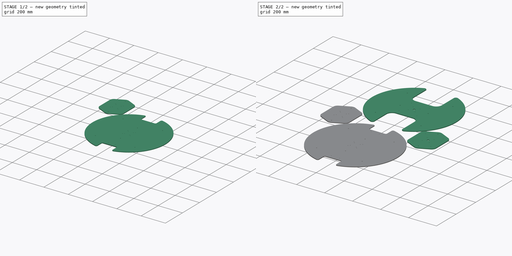
[diagram: build sequence overview — one tinted view per stage of 2, left to right]
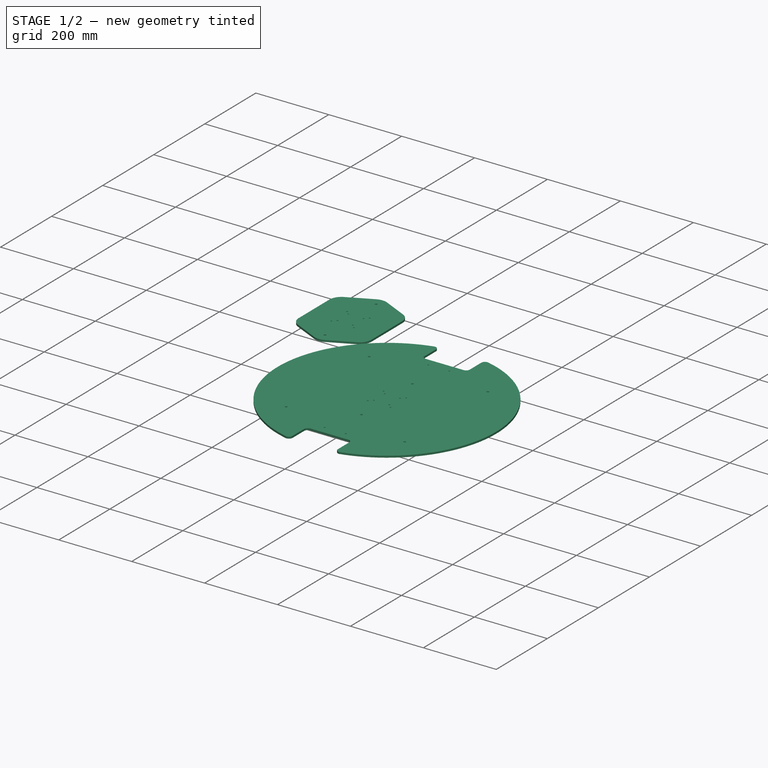
[diagram: stage 1 of 2 — iso view after this stage's code; geometry added in this stage tinted green]
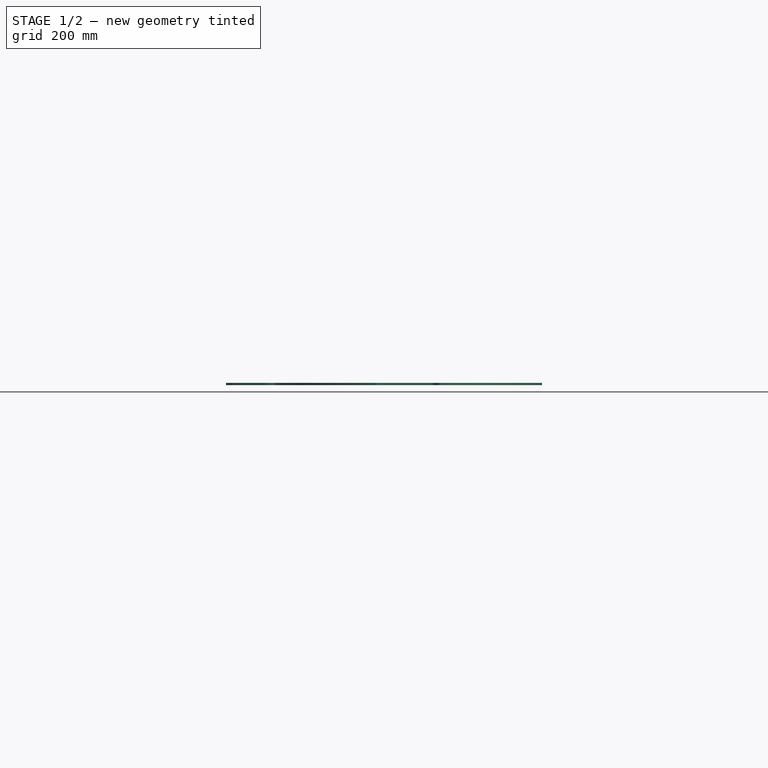
[diagram: stage 1 of 2 — front view after this stage's code; geometry added in this stage tinted green]
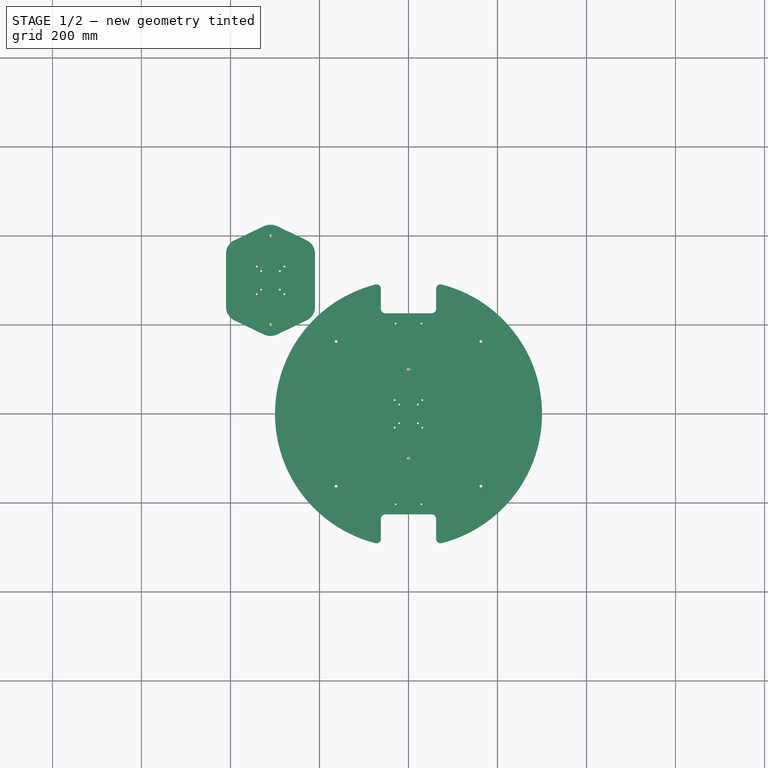
[diagram: stage 1 of 2 — top view after this stage's code; geometry added in this stage tinted green]
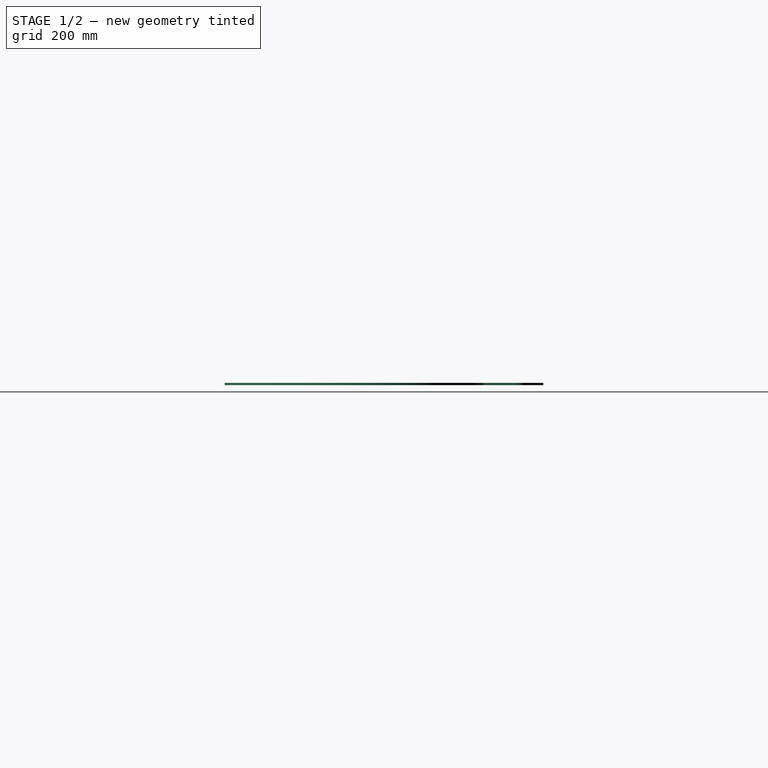
[diagram: stage 1 of 2 — right view after this stage's code; geometry added in this stage tinted green]
FCSTD DOCUMENT  (FreeCAD 0.15R4671 (Git))
Label: plaques
License: All rights reserved
LicenseURL: http://fr.wikipedia.org/wiki/<copyright redacted>
objects: Sketcher::SketchObject×4, PartDesign::Pad×4
note: 12 computed .brp shape members not serialized (recipe doc carries the construction recipe); baked Part::Feature solids carry a one-line shape summary decoded from their .brp

FEATURE [Sketcher::SketchObject] Sketch002  label="socle_bottom_sketch"
  Placement = pos=(-310,300,0) rot=(0,0,1;1.5708rad)
  sketch-geometry (24):
    g0: LineSegment StartX=-60 StartY=-100 StartZ=0 EndX=60 EndY=-100 EndZ=0
    g1: LineSegment StartX=90 StartY=-81.0908 StartZ=0 EndX=121.599 EndY=-15 EndZ=0
    g2: LineSegment StartX=121.599 StartY=15 StartZ=0 EndX=90 EndY=81.0908 EndZ=0
    g3: LineSegment StartX=60 StartY=100 StartZ=0 EndX=-60 EndY=100 EndZ=0
    g4: LineSegment StartX=-90 StartY=81.0908 StartZ=0 EndX=-121.599 EndY=15 EndZ=0
    g5: LineSegment StartX=-121.599 StartY=-15 StartZ=0 EndX=-90 EndY=-81.0908 EndZ=0
    g6: ArcOfCircle CenterX=-60 CenterY=66.7475 CenterZ=0 NormalX=0 NormalY=0 NormalZ=1 Radius=33.2525 StartAngle=1.5708 EndAngle=2.69561
    g7: ArcOfCircle CenterX=60 CenterY=66.7475 CenterZ=0 NormalX=0 NormalY=0 NormalZ=1 Radius=33.2525 StartAngle=0.445982 EndAngle=1.5708
    g8: ArcOfCircle CenterX=60 CenterY=-66.7475 CenterZ=0 NormalX=0 NormalY=0 NormalZ=1 Radius=33.2525 StartAngle=4.71239 EndAngle=5.8372
    g9: ArcOfCircle CenterX=-60 CenterY=-66.7475 CenterZ=0 NormalX=0 NormalY=0 NormalZ=1 Radius=33.2525 StartAngle=3.58757 EndAngle=4.71239
    g10: ArcOfCircle CenterX=-90.225 CenterY=0 CenterZ=0 NormalX=0 NormalY=0 NormalZ=1 Radius=34.775 StartAngle=2.69561 EndAngle=3.58757
    g11: ArcOfCircle CenterX=90.225 CenterY=0 CenterZ=0 NormalX=0 NormalY=0 NormalZ=1 Radius=34.775 StartAngle=5.8372 EndAngle=6.72917
    g12: GeomPoint [constr] X=-125 Y=0 Z=0
    g13: GeomPoint [constr] X=125 Y=0 Z=0
    g14: Circle CenterX=-100 CenterY=0 CenterZ=0 NormalX=0 NormalY=0 NormalZ=1 Radius=3
    g15: Circle CenterX=100 CenterY=0 CenterZ=0 NormalX=0 NormalY=0 NormalZ=1 Radius=3
    g16: Circle CenterX=-21 CenterY=21 CenterZ=0 NormalX=0 NormalY=0 NormalZ=1 Radius=2
    g17: Circle CenterX=21 CenterY=21 CenterZ=0 NormalX=0 NormalY=0 NormalZ=1 Radius=2
    g18: Circle CenterX=-31 CenterY=31 CenterZ=0 NormalX=0 NormalY=0 NormalZ=1 Radius=2
    g19: Circle CenterX=31 CenterY=31 CenterZ=0 NormalX=0 NormalY=0 NormalZ=1 Radius=2
    g20: Circle CenterX=-31 CenterY=-31 CenterZ=0 NormalX=0 NormalY=0 NormalZ=1 Radius=2
    g21: Circle CenterX=31 CenterY=-31 CenterZ=0 NormalX=0 NormalY=0 NormalZ=1 Radius=2
    g22: Circle CenterX=-21 CenterY=-21 CenterZ=0 NormalX=0 NormalY=0 NormalZ=1 Radius=2
    g23: Circle CenterX=21 CenterY=-21 CenterZ=0 NormalX=0 NormalY=0 NormalZ=1 Radius=2
  constraints (54):
    c: Tangent(g3,g6) = -1.5708
    c: Tangent(g4,g6) = -1.5708
    c: Tangent(g3,g7) = -1.5708
    c: Tangent(g2,g7) = -1.5708
    c: Tangent(g1,g8) = -1.5708
    c: Tangent(g0,g8) = -1.5708
    c: Tangent(g5,g9) = -1.5708
    c: Tangent(g0,g9) = -1.5708
    c: Tangent(g4,g10) = -1.5708
    c: Tangent(g5,g10) = -1.5708
    c: Tangent(g2,g11) = -1.5708
    c: Tangent(g1,g11) = -1.5708
    c: PointOnObject(g12,g10)
    c: PointOnObject(g13,g11)
    c: DistanceX(g13,g12) = -250
    c: Symmetric(g5,g4,g-1)
    c: Symmetric(g2,g1,g-1)
    c: Symmetric(g3,g0,g-1)
    c: Symmetric(g3,g0,g-1)
    c: DistanceY(g3,g0) = -200
    c: Horizontal(g3)
    c: Symmetric(g12,g13,g-2)
    c: PointOnObject(g13,g-1)
    c: DistanceX(g3) = -120
    c: Symmetric(g3,g3,g-2)
    c: DistanceY(g4,g5) = -30
    c: DistanceX(g2,g3) = -30
    c: Symmetric(g4,g2,g-2)
    c: PointOnObject(g14,g-1)
    c: PointOnObject(g15,g-1)
    c: Radius(g14) = 3
    c: Equal(g14,g15)
    c: Symmetric(g14,g15,g-2)
    c: DistanceX(g15,g14) = -200
    c: Symmetric(g16,g17,g-2)
    c: Symmetric(g16,g23,g-1)
    c: Symmetric(g18,g21,g-1)
    c: Symmetric(g17,g22,g-1)
    c: Symmetric(g19,g20,g-1)
    c: Symmetric(g18,g20,g-1)
    c: Symmetric(g16,g22,g-1)
    c: Symmetric(g18,g19,g-2)
    c: DistanceX(g16,g17) = 42
    c: Radius(g16) = 2
    c: Equal(g17,g16)
    c: Equal(g16,g23)
    c: Equal(g23,g22)
    c: Equal(g22,g18)
    c: Equal(g18,g19)
    c: Equal(g19,g21)
    c: Equal(g21,g20)
    c: DistanceY(g16,g22) = -42
    c: DistanceX(g19,g18) = -62
    c: DistanceY(g18,g20) = -62
FEATURE [PartDesign::Pad] Pad002  label="socle_bottom"
  Length = 5
  Length2 = 100
  Placement = pos=(-310,300,0) rot=(0,0,1;1.5708rad)
  Sketch = -> Sketch002
  Type = 0
FEATURE [Sketcher::SketchObject] Sketch004  label="bottom_sketch"
  sketch-geometry (36):
    g0: LineSegment StartX=-62 StartY=280.92 StartZ=0 EndX=-62 EndY=235.92 EndZ=0
    g1: LineSegment StartX=-52 StartY=225.92 StartZ=0 EndX=52 EndY=225.92 EndZ=0
    g2: LineSegment StartX=62 StartY=235.92 StartZ=0 EndX=62 EndY=280.92 EndZ=0
    g3: LineSegment StartX=-62 StartY=-280.92 StartZ=0 EndX=-62 EndY=-235.92 EndZ=0
    g4: LineSegment StartX=-52 StartY=-225.92 StartZ=0 EndX=52 EndY=-225.92 EndZ=0
    g5: LineSegment StartX=62 StartY=-235.92 StartZ=0 EndX=62 EndY=-280.92 EndZ=0
    g6: ArcOfCircle CenterX=-52 CenterY=-235.92 CenterZ=0 NormalX=0 NormalY=0 NormalZ=1 Radius=10 StartAngle=1.5708 EndAngle=3.14159
    g7: ArcOfCircle CenterX=52 CenterY=-235.92 CenterZ=0 NormalX=0 NormalY=0 NormalZ=1 Radius=10 StartAngle=0 EndAngle=1.5708
    g8: ArcOfCircle CenterX=52 CenterY=235.92 CenterZ=0 NormalX=0 NormalY=0 NormalZ=1 Radius=10 StartAngle=4.71239 EndAngle=6.28319
    g9: ArcOfCircle CenterX=-52 CenterY=235.92 CenterZ=0 NormalX=0 NormalY=0 NormalZ=1 Radius=10 StartAngle=3.14159 EndAngle=4.71239
    g10: ArcOfCircle CenterX=0 CenterY=0 CenterZ=0 NormalX=0 NormalY=0 NormalZ=1 Radius=300 StartAngle=1.82176 EndAngle=4.46143
    g11: ArcOfCircle CenterX=0 CenterY=0 CenterZ=0 NormalX=0 NormalY=0 NormalZ=1 Radius=300 StartAngle=4.96335 EndAngle=7.60302
    g12: GeomPoint [constr] X=-300 Y=0 Z=0
    g13: GeomPoint [constr] X=300 Y=0 Z=0
    g14: ArcOfCircle CenterX=72 CenterY=280.92 CenterZ=0 NormalX=0 NormalY=0 NormalZ=1 Radius=10 StartAngle=1.31812 EndAngle=3.14159
    g15: ArcOfCircle CenterX=-72 CenterY=280.92 CenterZ=0 NormalX=0 NormalY=0 NormalZ=1 Radius=10 StartAngle=4.74205e-07 EndAngle=1.82348
    g16: ArcOfCircle CenterX=-72 CenterY=-280.92 CenterZ=0 NormalX=0 NormalY=0 NormalZ=1 Radius=10 StartAngle=4.45971 EndAngle=6.28318
    g17: ArcOfCircle CenterX=72 CenterY=-280.92 CenterZ=0 NormalX=0 NormalY=0 NormalZ=1 Radius=10 StartAngle=3.14159 EndAngle=4.96507
    g18: Circle CenterX=-21 CenterY=21 CenterZ=0 NormalX=0 NormalY=0 NormalZ=1 Radius=2
    g19: Circle CenterX=-31 CenterY=31 CenterZ=0 NormalX=0 NormalY=0 NormalZ=1 Radius=2
    g20: Circle CenterX=21 CenterY=21 CenterZ=0 NormalX=0 NormalY=0 NormalZ=1 Radius=2
    g21: Circle CenterX=31 CenterY=31 CenterZ=0 NormalX=0 NormalY=0 NormalZ=1 Radius=2
    g22: Circle CenterX=-21 CenterY=-21 CenterZ=0 NormalX=0 NormalY=0 NormalZ=1 Radius=2
    g23: Circle CenterX=-31 CenterY=-31 CenterZ=0 NormalX=0 NormalY=0 NormalZ=1 Radius=2
    g24: Circle CenterX=21 CenterY=-21 CenterZ=0 NormalX=0 NormalY=0 NormalZ=1 Radius=2
    g25: Circle CenterX=31 CenterY=-31 CenterZ=0 NormalX=0 NormalY=0 NormalZ=1 Radius=2
    g26: Circle CenterX=0 CenterY=100 CenterZ=0 NormalX=0 NormalY=0 NormalZ=1 Radius=3
    g27: Circle CenterX=0 CenterY=-100 CenterZ=0 NormalX=0 NormalY=0 NormalZ=1 Radius=3
    g28: Circle CenterX=-162.635 CenterY=162.635 CenterZ=0 NormalX=0 NormalY=0 NormalZ=1 Radius=3
    g29: Circle CenterX=162.635 CenterY=162.635 CenterZ=0 NormalX=0 NormalY=0 NormalZ=1 Radius=3
    g30: Circle CenterX=-162.635 CenterY=-162.635 CenterZ=0 NormalX=0 NormalY=0 NormalZ=1 Radius=3
    g31: Circle CenterX=162.635 CenterY=-162.635 CenterZ=0 NormalX=0 NormalY=0 NormalZ=1 Radius=3
    g32: Circle CenterX=-29 CenterY=202.92 CenterZ=0 NormalX=0 NormalY=0 NormalZ=1 Radius=2
    g33: Circle CenterX=29 CenterY=202.92 CenterZ=0 NormalX=0 NormalY=0 NormalZ=1 Radius=2
    g34: Circle CenterX=-29 CenterY=-202.92 CenterZ=0 NormalX=0 NormalY=0 NormalZ=1 Radius=2
    g35: Circle CenterX=29 CenterY=-202.92 CenterZ=0 NormalX=0 NormalY=0 NormalZ=1 Radius=2
  constraints (92):
    c: Vertical(g0)
    c: Horizontal(g1)
    c: Vertical(g2)
    c: Vertical(g3)
    c: Horizontal(g4)
    c: Vertical(g5)
    c: Tangent(g3,g6) = 1.5708
    c: Tangent(g4,g6) = 1.5708
    c: Tangent(g5,g7) = 1.5708
    c: Tangent(g4,g7) = 1.5708
    c: Tangent(g1,g8) = -1.5708
    c: Tangent(g2,g8) = -1.5708
    c: Tangent(g1,g9) = -1.5708
    c: Tangent(g0,g9) = -1.5708
    c: DistanceX(g2,g1) = -10
    c: DistanceX(g1,g0) = -10
    c: DistanceX(g4,g3) = -10
    c: DistanceX(g4,g5) = 10
    c: DistanceX(g3,g5) = 124
    c: Symmetric(g2,g0,g-2)
    c: DistanceX(g2,g0) = -124
    c: Symmetric(g5,g3,g-2)
    c: DistanceY(g4,g5) = -55
    c: DistanceY(g2,g1) = -55
    c: Symmetric(g4,g1,g-1)
    c: Coincident(g10,g-1)
    c: Coincident(g11,g-1)
    c: PointOnObject(g12,g10)
    c: PointOnObject(g13,g11)
    c: PointOnObject(g13,g-1)
    c: PointOnObject(g12,g-1)
    c: Symmetric(g12,g13,g-2)
    c: DistanceX(g13,g12) = -600
    c: Coincident(g14,g11)
    c: Coincident(g14,g2)
    c: Coincident(g15,g10)
    c: Coincident(g15,g0)
    c: Coincident(g16,g3)
    c: Coincident(g16,g10)
    c: Coincident(g17,g5)
    c: Coincident(g17,g11)
    c: Distance(g17,g11) = 10
    c: Distance(g16,g3) = 10
    c: Distance(g14,g11) = 10
    c: Symmetric(g14,g15,g-2)
    c: Symmetric(g17,g16,g-2)
    c: DistanceX(g10,g11) = 149
    c: DistanceX(g10,g11) = 149
    c: DistanceX(g15,g14) = 144
    c: Radius(g18) = 2
    c: Equal(g18,g19)
    c: Equal(g19,g20)
    c: Equal(g20,g21)
    c: Equal(g21,g22)
    c: Equal(g22,g23)
    c: Equal(g23,g24)
    c: Equal(g24,g25)
    c: Symmetric(g18,g24,g-1)
    c: Symmetric(g22,g20,g-1)
    c: Symmetric(g18,g22,g-1)
    c: DistanceX(g18,g20) = 42
    c: DistanceY(g18,g22) = -42
    c: DistanceX(g19,g21) = 62
    c: DistanceY(g19,g23) = -62
    c: Symmetric(g19,g25,g-1)
    c: Symmetric(g19,g23,g-1)
    c: Symmetric(g19,g21,g-2)
    c: PointOnObject(g26,g-2)
    c: PointOnObject(g27,g-2)
    c: Symmetric(g27,g26,g-1)
    c: DistanceY(g26,g27) = -200
    c: Radius(g26) = 3
    c: Equal(g26,g27)
    c: Radius(g28) = 3
    c: Equal(g29,g28)
    c: Equal(g28,g30)
    c: Equal(g30,g31)
    c: Symmetric(g28,g30,g-1)
    c: Symmetric(g28,g29,g-2)
    c: Symmetric(g31,g28,g-1)
    c: Distance(g-1,g29) = 230
    c: DistanceX(g29,g28) = -325.269
    c: Radius(g35) = 2
    c: Equal(g35,g34)
    c: Equal(g34,g32)
    c: Equal(g32,g33)
    c: Symmetric(g32,g33,g-2)
    c: Symmetric(g35,g34,g-2)
    c: DistanceY(g34,g4) = -23
    c: DistanceY(g32,g1) = 23
    c: DistanceX(g32,g33) = 58
    c: DistanceX(g35,g34) = -58
FEATURE [PartDesign::Pad] Pad004  label="bottom"
  Length = 5
  Length2 = 100
  Sketch = -> Sketch004
  Type = 0
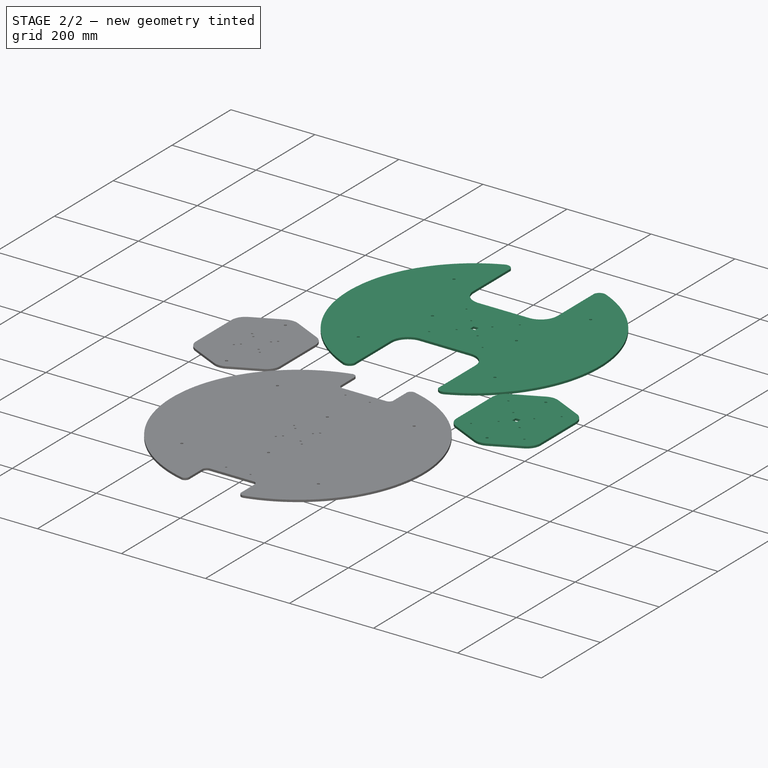
[diagram: stage 2 of 2 — iso view after this stage's code; geometry added in this stage tinted green]
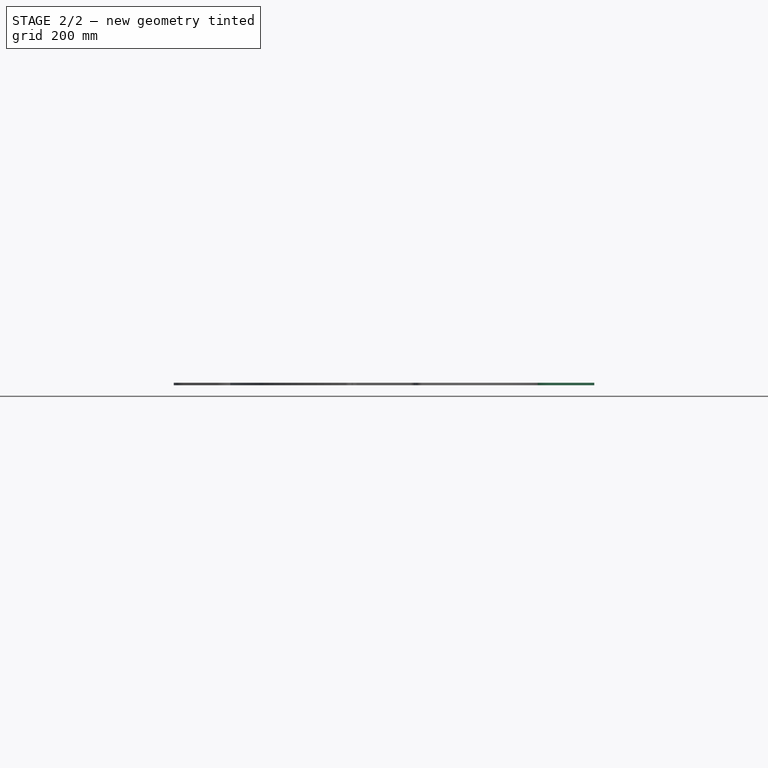
[diagram: stage 2 of 2 — front view after this stage's code; geometry added in this stage tinted green]
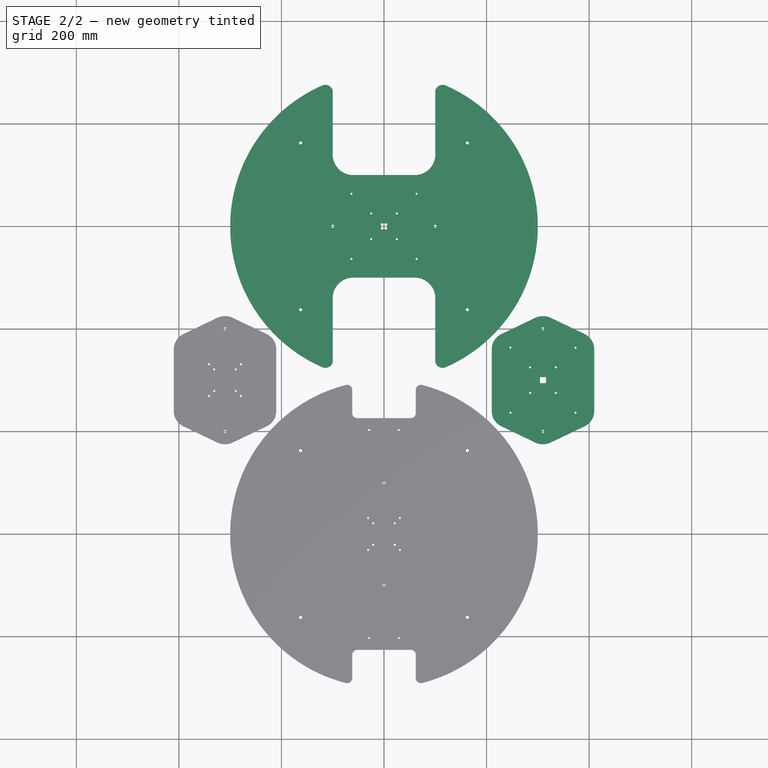
[diagram: stage 2 of 2 — top view after this stage's code; geometry added in this stage tinted green]
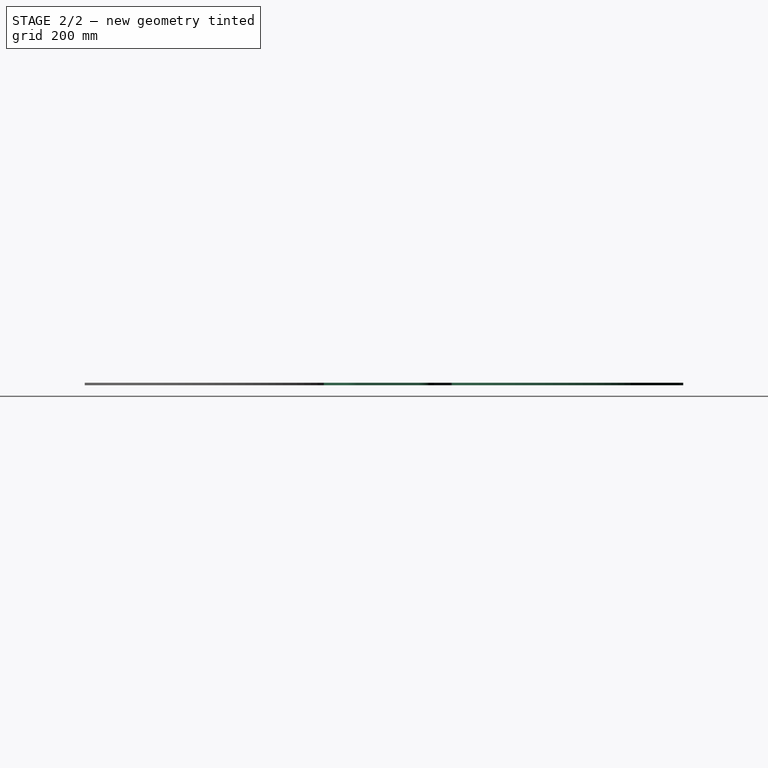
[diagram: stage 2 of 2 — right view after this stage's code; geometry added in this stage tinted green]
FEATURE [Sketcher::SketchObject] Sketch001  label="top_sketch"
  Placement = pos=(0,600,0) rot=(0,0,1;0rad)
  sketch-geometry (34):
    g0: LineSegment StartX=100 StartY=265 StartZ=0 EndX=100 EndY=140 EndZ=0
    g1: LineSegment StartX=60 StartY=100 StartZ=0 EndX=-60 EndY=100 EndZ=0
    g2: LineSegment StartX=-100 StartY=140 StartZ=0 EndX=-100 EndY=265 EndZ=0
    g3: LineSegment StartX=-60 StartY=-100 StartZ=0 EndX=60 EndY=-100 EndZ=0
    g4: LineSegment StartX=100 StartY=-140 StartZ=0 EndX=100 EndY=-265 EndZ=0
    g5: LineSegment StartX=-100 StartY=-265 StartZ=0 EndX=-100 EndY=-140 EndZ=0
    g6: ArcOfCircle CenterX=-60 CenterY=140 CenterZ=0 NormalX=0 NormalY=0 NormalZ=1 Radius=40 StartAngle=3.14159 EndAngle=4.71239
    g7: ArcOfCircle CenterX=-60 CenterY=-140 CenterZ=0 NormalX=0 NormalY=0 NormalZ=1 Radius=40 StartAngle=1.5708 EndAngle=3.14159
    g8: ArcOfCircle CenterX=60 CenterY=-140 CenterZ=0 NormalX=0 NormalY=0 NormalZ=1 Radius=40 StartAngle=0 EndAngle=1.5708
    g9: ArcOfCircle CenterX=60 CenterY=140 CenterZ=0 NormalX=0 NormalY=0 NormalZ=1 Radius=40 StartAngle=4.71239 EndAngle=6.28319
    g10: ArcOfCircle CenterX=0 CenterY=0 CenterZ=0 NormalX=0 NormalY=0 NormalZ=1 Radius=300 StartAngle=1.98413 EndAngle=4.29905
    g11: ArcOfCircle CenterX=0 CenterY=0 CenterZ=0 NormalX=0 NormalY=0 NormalZ=1 Radius=300 StartAngle=5.12573 EndAngle=7.44065
    g12: ArcOfCircle CenterX=-114.459 CenterY=261.006 CenterZ=0 NormalX=0 NormalY=0 NormalZ=1 Radius=15 StartAngle=0.269503 EndAngle=1.98533
    g13: ArcOfCircle CenterX=-114.459 CenterY=-261.006 CenterZ=0 NormalX=0 NormalY=0 NormalZ=1 Radius=15 StartAngle=4.29786 EndAngle=6.01368
    g14: ArcOfCircle CenterX=114.459 CenterY=-261.006 CenterZ=0 NormalX=0 NormalY=0 NormalZ=1 Radius=15 StartAngle=3.4111 EndAngle=5.12692
    g15: ArcOfCircle CenterX=114.459 CenterY=261.006 CenterZ=0 NormalX=0 NormalY=0 NormalZ=1 Radius=15 StartAngle=1.15626 EndAngle=2.87209
    g16: Circle CenterX=100 CenterY=0 CenterZ=0 NormalX=0 NormalY=0 NormalZ=1 Radius=3
    g17: Circle CenterX=-100 CenterY=0 CenterZ=0 NormalX=0 NormalY=0 NormalZ=1 Radius=3
    g18: Circle CenterX=-162.635 CenterY=162.635 CenterZ=0 NormalX=0 NormalY=0 NormalZ=1 Radius=3
    g19: Circle CenterX=162.635 CenterY=162.635 CenterZ=0 NormalX=0 NormalY=0 NormalZ=1 Radius=3
    g20: Circle CenterX=-162.635 CenterY=-162.635 CenterZ=0 NormalX=0 NormalY=0 NormalZ=1 Radius=3
    g21: Circle CenterX=162.635 CenterY=-162.635 CenterZ=0 NormalX=0 NormalY=0 NormalZ=1 Radius=3
    g22: LineSegment StartX=-5.9 StartY=5.9 StartZ=0 EndX=5.9 EndY=5.9 EndZ=0
    g23: LineSegment StartX=5.9 StartY=5.9 StartZ=0 EndX=5.9 EndY=-5.9 EndZ=0
    g24: LineSegment StartX=5.9 StartY=-5.9 StartZ=0 EndX=-5.9 EndY=-5.9 EndZ=0
    g25: LineSegment StartX=-5.9 StartY=-5.9 StartZ=0 EndX=-5.9 EndY=5.9 EndZ=0
    g26: Circle CenterX=-25 CenterY=25 CenterZ=0 NormalX=0 NormalY=0 NormalZ=1 Radius=2
    g27: Circle CenterX=25 CenterY=-25 CenterZ=0 NormalX=0 NormalY=0 NormalZ=1 Radius=2
    g28: Circle CenterX=-63.5 CenterY=63.5 CenterZ=0 NormalX=0 NormalY=0 NormalZ=1 Radius=2
    g29: Circle CenterX=25 CenterY=25 CenterZ=0 NormalX=0 NormalY=0 NormalZ=1 Radius=2
    g30: Circle CenterX=63.5 CenterY=63.5 CenterZ=0 NormalX=0 NormalY=0 NormalZ=1 Radius=2
    g31: Circle CenterX=63.5 CenterY=-63.5 CenterZ=0 NormalX=0 NormalY=0 NormalZ=1 Radius=2
    g32: Circle CenterX=-25 CenterY=-25 CenterZ=0 NormalX=0 NormalY=0 NormalZ=1 Radius=2
    g33: Circle CenterX=-63.5 CenterY=-63.5 CenterZ=0 NormalX=0 NormalY=0 NormalZ=1 Radius=2
  constraints (87):
    c: Horizontal(g1)
    c: Vertical(g2)
    c: Horizontal(g3)
    c: Vertical(g4)
    c: Vertical(g5)
    c: Tangent(g2,g6) = 1.5708
    c: Tangent(g1,g6) = 1.5708
    c: Tangent(g3,g7) = 1.5708
    c: Tangent(g5,g7) = 1.5708
    c: Tangent(g3,g8) = 1.5708
    c: Tangent(g4,g8) = 1.5708
    c: Tangent(g1,g9) = 1.5708
    c: Tangent(g0,g9) = 1.5708
    c: DistanceY(g2,g1) = -165
    c: Symmetric(g2,g0,g-2)
    c: Symmetric(g4,g5,g-2)
    c: DistanceY(g3,g5) = -165
    c: DistanceY(g3,g5) = -40
    c: DistanceY(g2,g1) = -40
    c: Symmetric(g1,g3,g-1)
    c: Symmetric(g2,g0,g-2)
    c: Symmetric(g4,g5,g-2)
    c: DistanceX(g4,g5) = -200
    c: DistanceY(g1,g3) = -200
    c: Coincident(g10,g-1)
    c: Coincident(g11,g-1)
    c: Symmetric(g11,g10,g-2)
    c: Symmetric(g11,g10,g-2)
    c: Distance(g-1,g10) = 300
    c: DistanceX(g11,g10) = -241
    c: DistanceX(g11,g10) = -241
    c: Coincident(g12,g2)
    c: Coincident(g12,g10)
    c: Distance(g2,g12) = 15
    c: Coincident(g13,g5)
    c: Coincident(g13,g10)
    c: Coincident(g14,g4)
    c: Coincident(g14,g11)
    c: Coincident(g15,g11)
    c: Coincident(g15,g0)
    c: Symmetric(g12,g15,g-2)
    c: Symmetric(g12,g13,g-1)
    c: Symmetric(g15,g14,g-1)
    c: PointOnObject(g16,g-1)
    c: PointOnObject(g17,g-1)
    c: Equal(g17,g16)
    c: Radius(g17) = 3
    c: Symmetric(g16,g17,g-2)
    c: DistanceX(g-1,g17) = -100
    c: Equal(g19,g18)
    c: Equal(g18,g20)
    c: Equal(g20,g21)
    c: Equal(g21,g17)
    c: Symmetric(g18,g20,g-1)
    c: Symmetric(g21,g20,g-2)
    c: Symmetric(g21,g19,g-1)
    c: Distance(g-1,g19) = 230
    c: DistanceX(g19,g18) = -325.269
    c: Coincident(g22,g23)
    c: Coincident(g23,g24)
    c: Coincident(g24,g25)
    c: Coincident(g25,g22)
    c: Horizontal(g22)
    c: Horizontal(g24)
    c: Vertical(g23)
    c: Vertical(g25)
    c: DistanceX(g22) = 11.8
    c: Equal(g22,g23)
    c: Symmetric(g22,g24,g-1)
    c: Radius(g26) = 2
    c: Equal(g26,g28)
    c: Equal(g28,g30)
    c: Equal(g30,g29)
    c: Equal(g29,g31)
    c: Equal(g31,g27)
    c: Equal(g27,g32)
    c: Equal(g32,g33)
    c: Symmetric(g26,g29,g-2)
    c: Symmetric(g28,g30,g-2)
    c: Symmetric(g28,g33,g-1)
    c: Symmetric(g32,g26,g-1)
    c: Symmetric(g26,g27,g-1)
    c: Symmetric(g28,g31,g-1)
    c: DistanceY(g26,g32) = -50
    c: DistanceX(g26,g29) = 50
    c: DistanceX(g28,g30) = 127
    c: DistanceY(g28,g33) = -127
FEATURE [PartDesign::Pad] Pad  label="top"
  Length = 5
  Length2 = 100
  Placement = pos=(0,600,0) rot=(0,0,1;0rad)
  Sketch = -> Sketch001
  Type = 0
FEATURE [Sketcher::SketchObject] Sketch  label="socle_top_sketch"
  Placement = pos=(310,300,0) rot=(0,0,1;1.5708rad)
  sketch-geometry (28):
    g0: LineSegment StartX=-60 StartY=-100 StartZ=0 EndX=60 EndY=-100 EndZ=0
    g1: LineSegment StartX=90 StartY=-81.0908 StartZ=0 EndX=121.599 EndY=-15 EndZ=0
    g2: LineSegment StartX=121.599 StartY=15 StartZ=0 EndX=90 EndY=81.0908 EndZ=0
    g3: LineSegment StartX=60 StartY=100 StartZ=0 EndX=-60 EndY=100 EndZ=0
    g4: LineSegment StartX=-90 StartY=81.0908 StartZ=0 EndX=-121.599 EndY=15 EndZ=0
    g5: LineSegment StartX=-121.599 StartY=-15 StartZ=0 EndX=-90 EndY=-81.0908 EndZ=0
    g6: ArcOfCircle CenterX=-60 CenterY=66.7475 CenterZ=0 NormalX=0 NormalY=0 NormalZ=1 Radius=33.2525 StartAngle=1.5708 EndAngle=2.69561
    g7: ArcOfCircle CenterX=60 CenterY=66.7475 CenterZ=0 NormalX=0 NormalY=0 NormalZ=1 Radius=33.2525 StartAngle=0.445982 EndAngle=1.5708
    g8: ArcOfCircle CenterX=60 CenterY=-66.7475 CenterZ=0 NormalX=0 NormalY=0 NormalZ=1 Radius=33.2525 StartAngle=4.71239 EndAngle=5.8372
    g9: ArcOfCircle CenterX=-60 CenterY=-66.7475 CenterZ=0 NormalX=0 NormalY=0 NormalZ=1 Radius=33.2525 StartAngle=3.58757 EndAngle=4.71239
    g10: ArcOfCircle CenterX=-90.225 CenterY=0 CenterZ=0 NormalX=0 NormalY=0 NormalZ=1 Radius=34.775 StartAngle=2.69561 EndAngle=3.58757
    g11: ArcOfCircle CenterX=90.225 CenterY=0 CenterZ=0 NormalX=0 NormalY=0 NormalZ=1 Radius=34.775 StartAngle=5.8372 EndAngle=6.72917
    g12: GeomPoint [constr] X=-125 Y=0 Z=0
    g13: GeomPoint [constr] X=125 Y=0 Z=0
    g14: Circle CenterX=-100 CenterY=0 CenterZ=0 NormalX=0 NormalY=0 NormalZ=1 Radius=3
    g15: Circle CenterX=100 CenterY=0 CenterZ=0 NormalX=0 NormalY=0 NormalZ=1 Radius=3
    g16: Circle CenterX=-25 CenterY=25 CenterZ=0 NormalX=0 NormalY=0 NormalZ=1 Radius=2
    g17: Circle CenterX=25 CenterY=25 CenterZ=0 NormalX=0 NormalY=0 NormalZ=1 Radius=2
    g18: Circle CenterX=-63.5 CenterY=63.5 CenterZ=0 NormalX=0 NormalY=0 NormalZ=1 Radius=2
    g19: Circle CenterX=63.5 CenterY=63.5 CenterZ=0 NormalX=0 NormalY=0 NormalZ=1 Radius=2
    g20: Circle CenterX=-63.5 CenterY=-63.5 CenterZ=0 NormalX=0 NormalY=0 NormalZ=1 Radius=2
    g21: Circle CenterX=63.5 CenterY=-63.5 CenterZ=0 NormalX=0 NormalY=0 NormalZ=1 Radius=2
    g22: Circle CenterX=-25 CenterY=-25 CenterZ=0 NormalX=0 NormalY=0 NormalZ=1 Radius=2
    g23: Circle CenterX=25 CenterY=-25 CenterZ=0 NormalX=0 NormalY=0 NormalZ=1 Radius=2
    g24: LineSegment StartX=-5.9 StartY=5.9 StartZ=0 EndX=5.9 EndY=5.9 EndZ=0
    g25: LineSegment StartX=5.9 StartY=5.9 StartZ=0 EndX=5.9 EndY=-5.9 EndZ=0
    g26: LineSegment StartX=5.9 StartY=-5.9 StartZ=0 EndX=-5.9 EndY=-5.9 EndZ=0
    g27: LineSegment StartX=-5.9 StartY=-5.9 StartZ=0 EndX=-5.9 EndY=5.9 EndZ=0
  constraints (65):
    c: Tangent(g3,g6) = -1.5708
    c: Tangent(g4,g6) = -1.5708
    c: Tangent(g3,g7) = -1.5708
    c: Tangent(g2,g7) = -1.5708
    c: Tangent(g1,g8) = -1.5708
    c: Tangent(g0,g8) = -1.5708
    c: Tangent(g5,g9) = -1.5708
    c: Tangent(g0,g9) = -1.5708
    c: Tangent(g4,g10) = -1.5708
    c: Tangent(g5,g10) = -1.5708
    c: Tangent(g2,g11) = -1.5708
    c: Tangent(g1,g11) = -1.5708
    c: PointOnObject(g12,g10)
    c: PointOnObject(g13,g11)
    c: DistanceX(g13,g12) = -250
    c: Symmetric(g5,g4,g-1)
    c: Symmetric(g2,g1,g-1)
    c: Symmetric(g3,g0,g-1)
    c: Symmetric(g3,g0,g-1)
    c: DistanceY(g3,g0) = -200
    c: Horizontal(g3)
    c: Symmetric(g12,g13,g-2)
    c: PointOnObject(g13,g-1)
    c: DistanceX(g3) = -120
    c: Symmetric(g3,g3,g-2)
    c: DistanceY(g4,g5) = -30
    c: DistanceX(g2,g3) = -30
    c: Symmetric(g4,g2,g-2)
    c: PointOnObject(g14,g-1)
    c: PointOnObject(g15,g-1)
    c: Radius(g14) = 3
    c: Equal(g14,g15)
    c: Symmetric(g14,g15,g-2)
    c: DistanceX(g15,g14) = -200
    c: Symmetric(g16,g17,g-2)
    c: Symmetric(g16,g23,g-1)
    c: Symmetric(g18,g21,g-1)
    c: Symmetric(g17,g22,g-1)
    c: Symmetric(g19,g20,g-1)
    c: Symmetric(g18,g20,g-1)
    c: Symmetric(g16,g22,g-1)
    c: Symmetric(g18,g19,g-2)
    c: DistanceX(g16,g17) = 50
    c: Radius(g16) = 2
    c: Equal(g17,g16)
    c: Equal(g16,g23)
    c: Equal(g23,g22)
    c: Equal(g22,g18)
    c: Equal(g18,g19)
    c: Equal(g19,g21)
    c: Equal(g21,g20)
    c: DistanceY(g16,g22) = -50
    c: DistanceX(g19,g18) = -127
    c: DistanceY(g18,g20) = -127
    c: Coincident(g24,g25)
    c: Coincident(g25,g26)
    c: Coincident(g26,g27)
    c: Coincident(g27,g24)
    c: Horizontal(g24)
    c: Horizontal(g26)
    c: Vertical(g25)
    c: Vertical(g27)
    c: DistanceX(g24) = 11.8
    c: Symmetric(g24,g25,g-1)
    c: Equal(g24,g27)
FEATURE [PartDesign::Pad] Pad001  label="socle_top"
  Length = 5
  Length2 = 100
  Placement = pos=(310,300,0) rot=(0,0,1;1.5708rad)
  Sketch = -> Sketch
  Type = 0
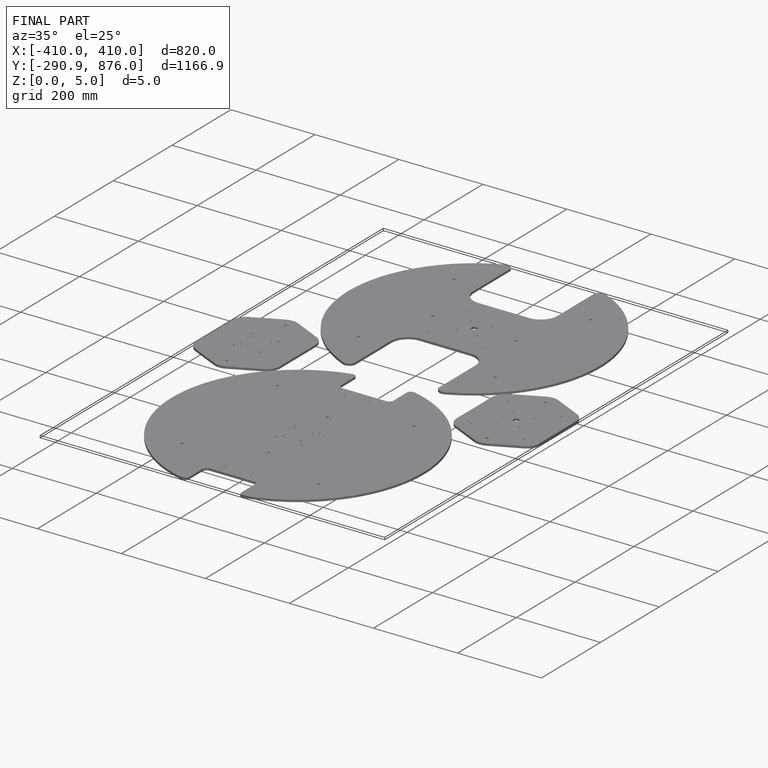
[diagram: finished part — iso view with bounding-box wireframe]
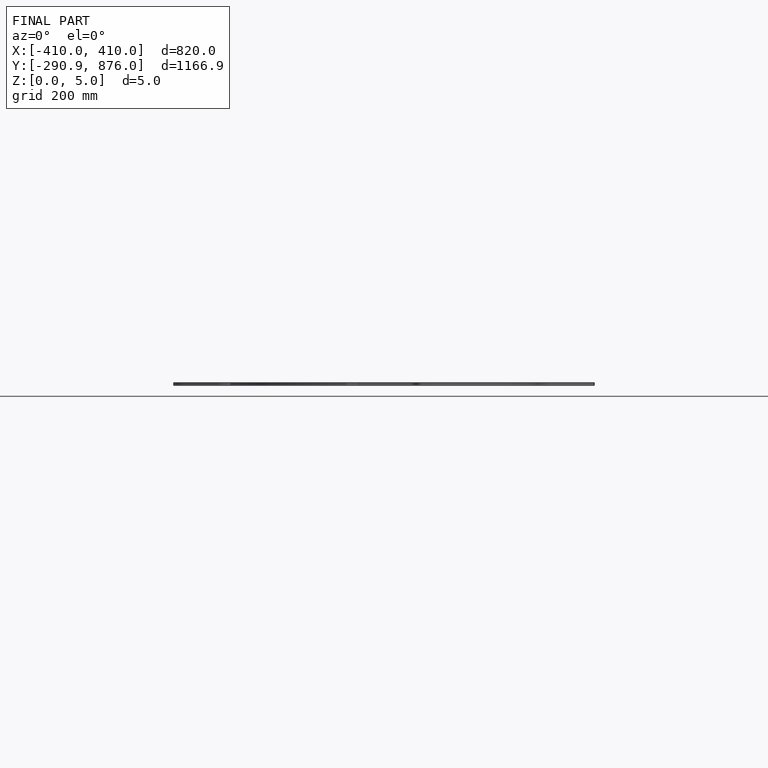
[diagram: finished part — front view with bounding-box wireframe]
